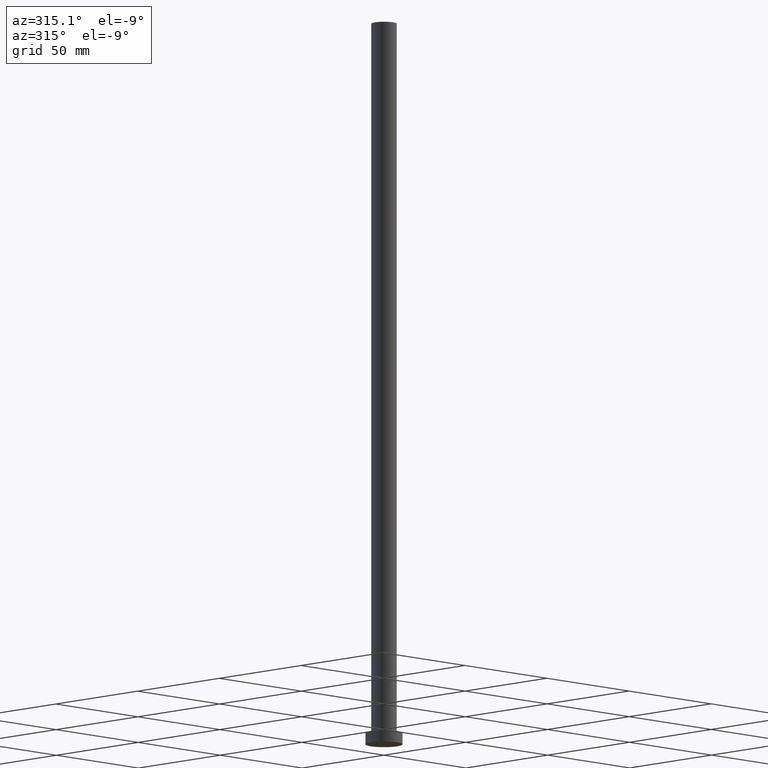
[diagram: clean part render]
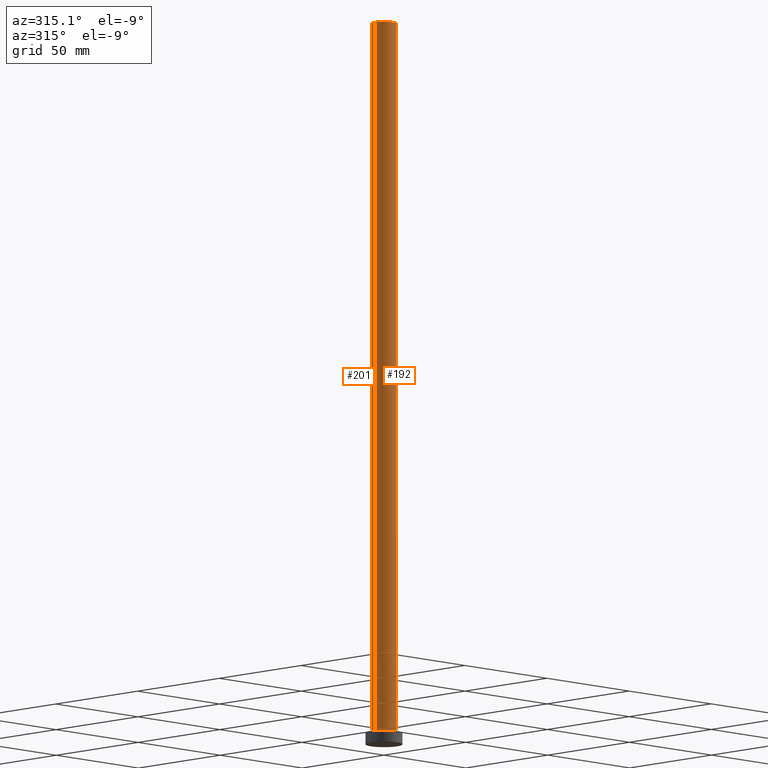
[diagram: same view with one multi-face feature highlighted, each face labeled with its STEP entity id]
A machine part, auxiliary view. The highlighted faces form ONE feature: a constant-radius fillet chain: 2 tangent blend faces with common blend radius 5.5 mm. The faces share edges in the B-rep.
Their STEP definitions:
[1] entity #192 (Cylinder):
#1 = AXIS2_PLACEMENT_3D ( 'NONE', #174, #196, #247 ) ;
#4 = VERTEX_POINT ( 'NONE', #134 ) ;
#5 = DIRECTION ( 'NONE',  ( -0.000000000000000000, -0.000000000000000000, -1.000000000000000000 ) ) ;
#11 = DIRECTION ( 'NONE',  ( 0.000000000000000000, 0.000000000000000000, 1.000000000000000000 ) ) ;
#12 = DIRECTION ( 'NONE',  ( 1.000000000000000000, 0.000000000000000000, 0.000000000000000000 ) ) ;
#16 = AXIS2_PLACEMENT_3D ( 'NONE', #155, #225, #12 ) ;
#22 = VERTEX_POINT ( 'NONE', #45 ) ;
#23 = DIRECTION ( 'NONE',  ( 1.000000000000000000, 0.000000000000000000, 0.000000000000000000 ) ) ;
#24 = CIRCLE ( 'NONE', #163, 5.500000000000000000 ) ;
#44 = ORIENTED_EDGE ( 'NONE', *, *, #156, .T. ) ;
#45 = CARTESIAN_POINT ( 'NONE',  ( -5.500000000000000000, 0.000000000000000000, 315.0000000000000000 ) ) ;
#46 = CARTESIAN_POINT ( 'NONE',  ( 5.500000000000000000, 6.735557395310442023E-16, 315.0000000000000000 ) ) ;
#51 = CYLINDRICAL_SURFACE ( 'NONE', #1, 5.500000000000000000 ) ;
#56 = VECTOR ( 'NONE', #5, 1000.000000000000000 ) ;
#58 = CARTESIAN_POINT ( 'NONE',  ( -5.500000000000000000, 0.000000000000000000, 5.000000000000000000 ) ) ;
#62 = ORIENTED_EDGE ( 'NONE', *, *, #69, .F. ) ;
#63 = LINE ( 'NONE', #46, #236 ) ;
#69 = EDGE_CURVE ( 'NONE', #234, #4, #63, .T. ) ;
#70 = FACE_OUTER_BOUND ( 'NONE', #216, .T. ) ;
#88 = VERTEX_POINT ( 'NONE', #58 ) ;
#96 = LINE ( 'NONE', #229, #56 ) ;
#108 = CARTESIAN_POINT ( 'NONE',  ( 5.500000000000000000, 6.735557395310442023E-16, 315.0000000000000000 ) ) ;
#134 = CARTESIAN_POINT ( 'NONE',  ( 5.500000000000000000, 6.735557395310442023E-16, 5.000000000000000000 ) ) ;
#152 = ORIENTED_EDGE ( 'NONE', *, *, #160, .T. ) ;
#155 = CARTESIAN_POINT ( 'NONE',  ( 0.000000000000000000, 0.000000000000000000, 315.0000000000000000 ) ) ;
#156 = EDGE_CURVE ( 'NONE', #88, #4, #24, .T. ) ;
#160 = EDGE_CURVE ( 'NONE', #22, #88, #96, .T. ) ;
#163 = AXIS2_PLACEMENT_3D ( 'NONE', #193, #11, #23 ) ;
#174 = CARTESIAN_POINT ( 'NONE',  ( 0.000000000000000000, 0.000000000000000000, 315.0000000000000000 ) ) ;
#178 = ORIENTED_EDGE ( 'NONE', *, *, #235, .F. ) ;
#192 = ADVANCED_FACE ( 'NONE', ( #70 ), #51, .T. ) ;
#193 = CARTESIAN_POINT ( 'NONE',  ( 0.000000000000000000, 0.000000000000000000, 5.000000000000000000 ) ) ;
#196 = DIRECTION ( 'NONE',  ( -0.000000000000000000, -0.000000000000000000, -1.000000000000000000 ) ) ;
#198 = DIRECTION ( 'NONE',  ( -0.000000000000000000, -0.000000000000000000, -1.000000000000000000 ) ) ;
#216 = EDGE_LOOP ( 'NONE', ( #62, #178, #152, #44 ) ) ;
#225 = DIRECTION ( 'NONE',  ( 0.000000000000000000, 0.000000000000000000, 1.000000000000000000 ) ) ;
#229 = CARTESIAN_POINT ( 'NONE',  ( -5.500000000000000000, 0.000000000000000000, 315.0000000000000000 ) ) ;
#233 = CIRCLE ( 'NONE', #16, 5.500000000000000000 ) ;
#234 = VERTEX_POINT ( 'NONE', #108 ) ;
#235 = EDGE_CURVE ( 'NONE', #22, #234, #233, .T. ) ;
#236 = VECTOR ( 'NONE', #198, 1000.000000000000000 ) ;
#247 = DIRECTION ( 'NONE',  ( -1.000000000000000000, 0.000000000000000000, 0.000000000000000000 ) ) ;
[2] entity #201 (Cylinder):
#4 = VERTEX_POINT ( 'NONE', #134 ) ;
#5 = DIRECTION ( 'NONE',  ( -0.000000000000000000, -0.000000000000000000, -1.000000000000000000 ) ) ;
#22 = VERTEX_POINT ( 'NONE', #45 ) ;
#34 = CARTESIAN_POINT ( 'NONE',  ( 0.000000000000000000, 0.000000000000000000, 315.0000000000000000 ) ) ;
#38 = CARTESIAN_POINT ( 'NONE',  ( 0.000000000000000000, 0.000000000000000000, 315.0000000000000000 ) ) ;
#39 = AXIS2_PLACEMENT_3D ( 'NONE', #38, #107, #169 ) ;
#45 = CARTESIAN_POINT ( 'NONE',  ( -5.500000000000000000, 0.000000000000000000, 315.0000000000000000 ) ) ;
#46 = CARTESIAN_POINT ( 'NONE',  ( 5.500000000000000000, 6.735557395310442023E-16, 315.0000000000000000 ) ) ;
#56 = VECTOR ( 'NONE', #5, 1000.000000000000000 ) ;
#58 = CARTESIAN_POINT ( 'NONE',  ( -5.500000000000000000, 0.000000000000000000, 5.000000000000000000 ) ) ;
#63 = LINE ( 'NONE', #46, #236 ) ;
#69 = EDGE_CURVE ( 'NONE', #234, #4, #63, .T. ) ;
#72 = DIRECTION ( 'NONE',  ( -1.000000000000000000, 0.000000000000000000, 0.000000000000000000 ) ) ;
#74 = CARTESIAN_POINT ( 'NONE',  ( 0.000000000000000000, 0.000000000000000000, 5.000000000000000000 ) ) ;
#87 = DIRECTION ( 'NONE',  ( 0.000000000000000000, 0.000000000000000000, 1.000000000000000000 ) ) ;
#88 = VERTEX_POINT ( 'NONE', #58 ) ;
#91 = AXIS2_PLACEMENT_3D ( 'NONE', #74, #87, #213 ) ;
#96 = LINE ( 'NONE', #229, #56 ) ;
#102 = ORIENTED_EDGE ( 'NONE', *, *, #211, .T. ) ;
#107 = DIRECTION ( 'NONE',  ( 0.000000000000000000, 0.000000000000000000, 1.000000000000000000 ) ) ;
#108 = CARTESIAN_POINT ( 'NONE',  ( 5.500000000000000000, 6.735557395310442023E-16, 315.0000000000000000 ) ) ;
#110 = CIRCLE ( 'NONE', #91, 5.500000000000000000 ) ;
#133 = CYLINDRICAL_SURFACE ( 'NONE', #191, 5.500000000000000000 ) ;
#134 = CARTESIAN_POINT ( 'NONE',  ( 5.500000000000000000, 6.735557395310442023E-16, 5.000000000000000000 ) ) ;
#149 = EDGE_CURVE ( 'NONE', #234, #22, #190, .T. ) ;
#160 = EDGE_CURVE ( 'NONE', #22, #88, #96, .T. ) ;
#169 = DIRECTION ( 'NONE',  ( 1.000000000000000000, 0.000000000000000000, 0.000000000000000000 ) ) ;
#190 = CIRCLE ( 'NONE', #39, 5.500000000000000000 ) ;
#191 = AXIS2_PLACEMENT_3D ( 'NONE', #34, #242, #72 ) ;
#198 = DIRECTION ( 'NONE',  ( -0.000000000000000000, -0.000000000000000000, -1.000000000000000000 ) ) ;
#201 = ADVANCED_FACE ( 'NONE', ( #240 ), #133, .T. ) ;
#204 = EDGE_LOOP ( 'NONE', ( #221, #249, #102, #243 ) ) ;
#211 = EDGE_CURVE ( 'NONE', #4, #88, #110, .T. ) ;
#213 = DIRECTION ( 'NONE',  ( 1.000000000000000000, 0.000000000000000000, 0.000000000000000000 ) ) ;
#221 = ORIENTED_EDGE ( 'NONE', *, *, #149, .F. ) ;
#229 = CARTESIAN_POINT ( 'NONE',  ( -5.500000000000000000, 0.000000000000000000, 315.0000000000000000 ) ) ;
#234 = VERTEX_POINT ( 'NONE', #108 ) ;
#236 = VECTOR ( 'NONE', #198, 1000.000000000000000 ) ;
#240 = FACE_OUTER_BOUND ( 'NONE', #204, .T. ) ;
#242 = DIRECTION ( 'NONE',  ( -0.000000000000000000, -0.000000000000000000, -1.000000000000000000 ) ) ;
#243 = ORIENTED_EDGE ( 'NONE', *, *, #160, .F. ) ;
#249 = ORIENTED_EDGE ( 'NONE', *, *, #69, .T. ) ;